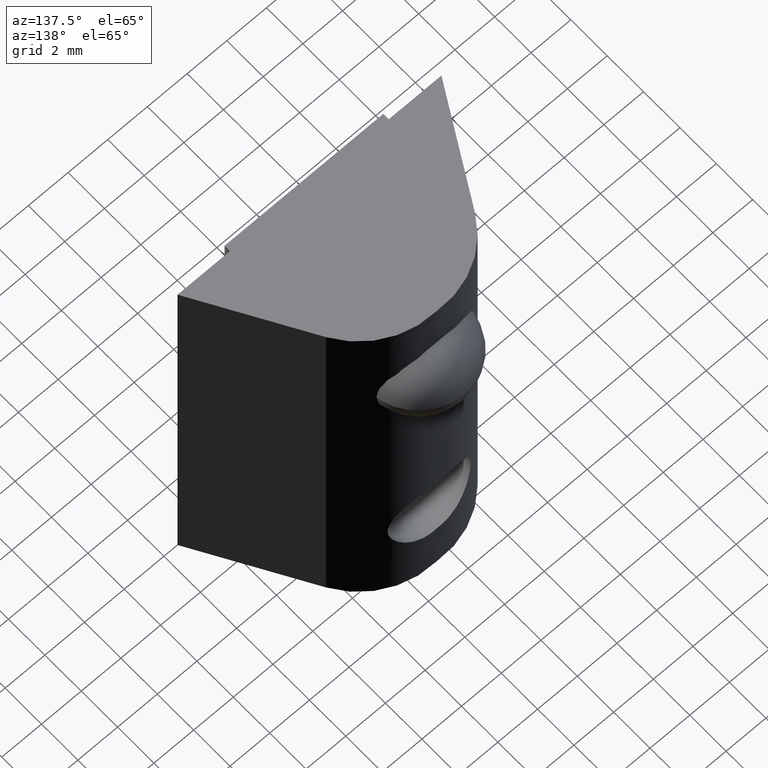
[diagram: clean part render]
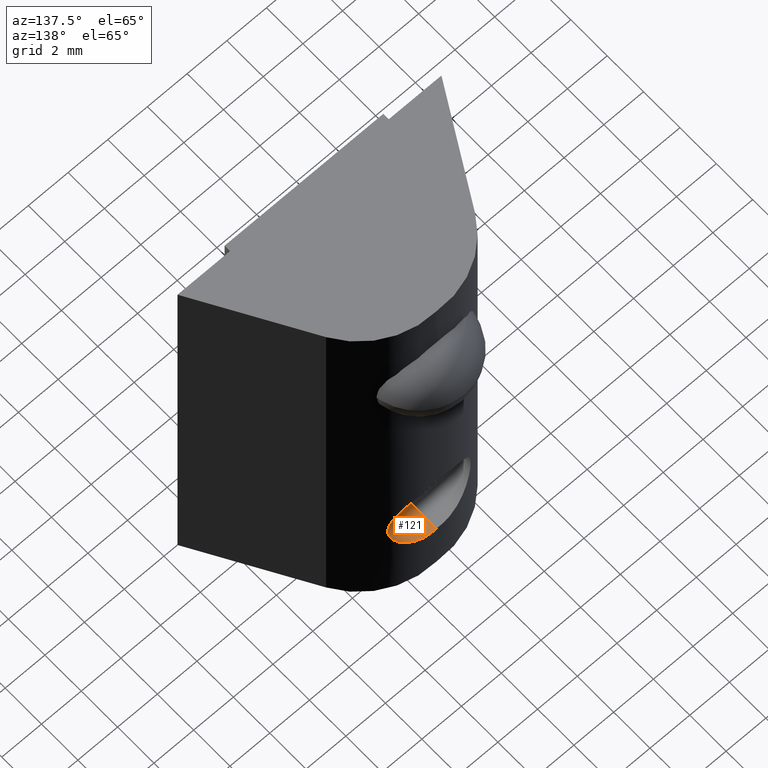
[diagram: same view with one face highlighted and labeled with its STEP entity id]
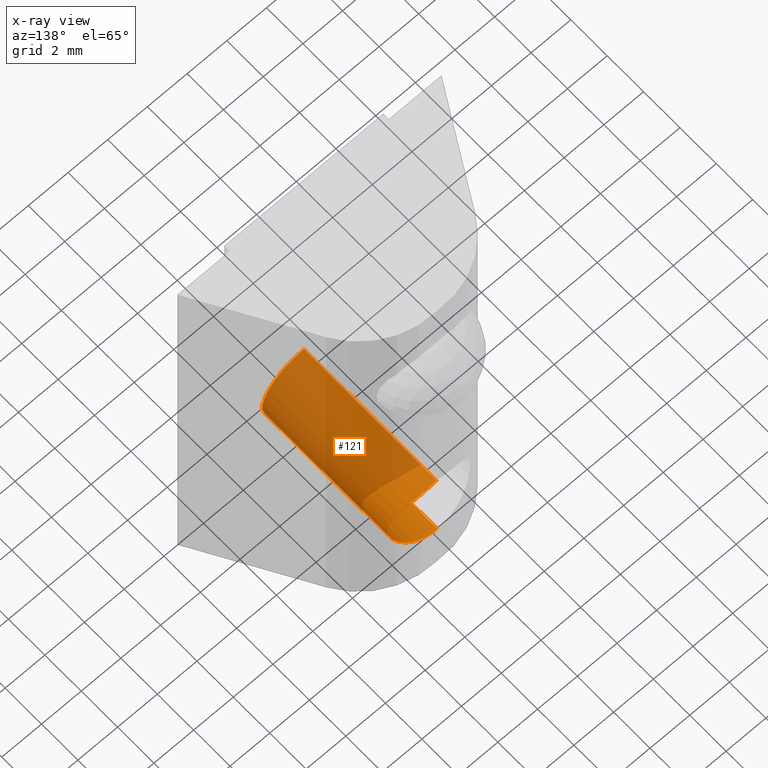
[diagram: x-ray of the same camera — body ghosted, the highlighted face saturated]
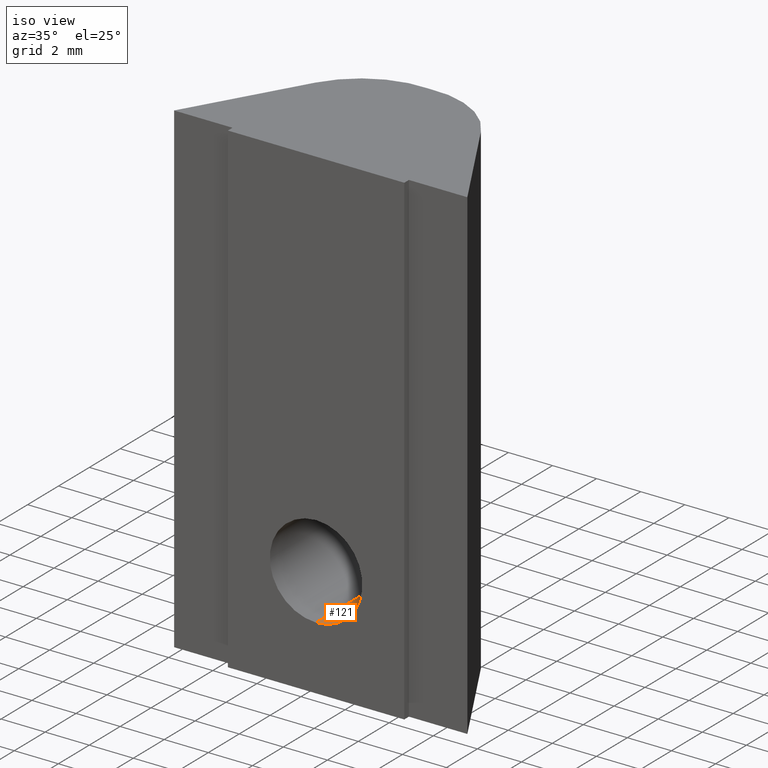
[diagram: same view with one face highlighted and labeled with its STEP entity id]
A machine part, auxiliary view. The second image highlights one B-rep face of the part: STEP entity #121.
The next image is the same camera in x-ray: the body ghosted, the highlighted face saturated — about 77% of this face is hidden behind the body in this view.
A second angle (iso view) of the same face is appended — the face is thin or edge-on in the first view.
In plain terms, the highlighted cylindrical surface (partial cylindrical patch) has radius 2.1 mm, axis along (0, 1, 0).
Its self-contained STEP definition (entity closure, byte-faithful):
#10 = EDGE_LOOP ( 'NONE', ( #658, #544, #724, #570 ) ) ;
#22 = CARTESIAN_POINT ( 'NONE',  ( 0.0000000000000000000, -0.2999999999999999300, -16.99999999999999600 ) ) ;
#26 = CARTESIAN_POINT ( 'NONE',  ( 0.2778427095453829300, 7.013015978677898900, -14.91386525814885100 ) ) ;
#31 = CARTESIAN_POINT ( 'NONE',  ( 1.065483002489959100, 6.943797238216981200, -15.16950234633369700 ) ) ;
#42 = AXIS2_PLACEMENT_3D ( 'NONE', #22, #204, #224 ) ;
#57 = EDGE_CURVE ( 'NONE', #597, #146, #70, .T. ) ;
#70 = LINE ( 'NONE', #618, #167 ) ;
#121 = ADVANCED_FACE ( 'NONE', ( #719 ), #378, .F. ) ;
#138 = CARTESIAN_POINT ( 'NONE',  ( 0.5492240288136818200, 7.004830928030088400, -14.96837313992467100 ) ) ;
#144 = CARTESIAN_POINT ( 'NONE',  ( 1.670093248805526200, 6.767075733069882300, -15.71965499976650400 ) ) ;
#146 = VERTEX_POINT ( 'NONE', #744 ) ;
#152 = CARTESIAN_POINT ( 'NONE',  ( 2.085941216390682800, 6.586504634481535400, -16.72104059423844900 ) ) ;
#155 = CARTESIAN_POINT ( 'NONE',  ( 0.0000000000000000000, 7.000000000000000000, -14.89999999999999900 ) ) ;
#163 = EDGE_CURVE ( 'NONE', #490, #678, #509, .T. ) ;
#167 = VECTOR ( 'NONE', #248, 1000.000000000000000 ) ;
#184 = CARTESIAN_POINT ( 'NONE',  ( -2.168404344971008900E-016, 7.000000000000000000, -19.09999999999999400 ) ) ;
#194 = VECTOR ( 'NONE', #735, 1000.000000000000000 ) ;
#203 = CARTESIAN_POINT ( 'NONE',  ( 2.571758278209441500E-016, -0.2999999999999999300, -19.09999999999999400 ) ) ;
#204 = DIRECTION ( 'NONE',  ( -0.0000000000000000000, 1.000000000000000000, -0.0000000000000000000 ) ) ;
#206 = CARTESIAN_POINT ( 'NONE',  ( 0.6841240291442684000, 6.993631784759942100, -15.00978186247948700 ) ) ;
#213 = CARTESIAN_POINT ( 'NONE',  ( -2.168404344971008900E-016, 7.000000000000000000, -19.09999999999999400 ) ) ;
#214 = CARTESIAN_POINT ( 'NONE',  ( 1.821280718181895700, 6.708142508589593200, -15.94575556681216500 ) ) ;
#224 = DIRECTION ( 'NONE',  ( 0.0000000000000000000, 0.0000000000000000000, 1.000000000000000000 ) ) ;
#225 = CARTESIAN_POINT ( 'NONE',  ( 1.670459469328647400, 6.766941291681750800, -18.27987192857328900 ) ) ;
#248 = DIRECTION ( 'NONE',  ( -0.0000000000000000000, 1.000000000000000000, -0.0000000000000000000 ) ) ;
#250 = CARTESIAN_POINT ( 'NONE',  ( 0.1401207566892639100, 7.010289564343477900, -19.09999999999999400 ) ) ;
#256 = CARTESIAN_POINT ( 'NONE',  ( 0.6862748488494189200, 6.993394619347876400, -18.98942124772582200 ) ) ;
#271 = CARTESIAN_POINT ( 'NONE',  ( 1.296584994652632700, 6.887950795788006200, -15.32606086254450700 ) ) ;
#337 = CARTESIAN_POINT ( 'NONE',  ( 1.297061383087251900, 6.887819709980458800, -18.67354579114834600 ) ) ;
#346 = CARTESIAN_POINT ( 'NONE',  ( 2.044340105706192700, 6.608803008618787400, -17.55335733217450000 ) ) ;
#367 = B_SPLINE_CURVE_WITH_KNOTS ( 'NONE', 3,
 ( #155, #609, #26, #138, #206, #31, #271, #525, #144, #214, #588, #783, #730, #152, #528, #661, #346, #722, #415, #225, #721, #337, #779, #256, #592, #501, #250, #184 ),
 .UNSPECIFIED., .F., .F.,
 ( 4, 2, 2, 2, 2, 2, 2, 2, 2, 2, 2, 2, 2, 4 ),
 ( 2.117074005974005400E-019, 0.0004148728083314227900, 0.0008297456166628452500, 0.001659491233325687900, 0.002074364041657113100, 0.002489236849988537600, 0.002904109658319962500, 0.003318982466651387500, 0.004148728083314227900, 0.004563600891645647200, 0.004978473699977068200, 0.005808219316639900800, 0.006223092124971314900, 0.006637964933302729000 ),
 .UNSPECIFIED. ) ;
#378 = CYLINDRICAL_SURFACE ( 'NONE', #639, 2.099999999999999600 ) ;
#415 = CARTESIAN_POINT ( 'NONE',  ( 1.821627727605634300, 6.707998891988374600, -18.05365051807418200 ) ) ;
#490 = VERTEX_POINT ( 'NONE', #203 ) ;
#497 = CARTESIAN_POINT ( 'NONE',  ( 0.0000000000000000000, -0.2999999999999999300, -14.90000000000000000 ) ) ;
#501 = CARTESIAN_POINT ( 'NONE',  ( 0.2786961704262097600, 7.013065025561826500, -19.08611431995495500 ) ) ;
#509 = LINE ( 'NONE', #553, #194 ) ;
#525 = CARTESIAN_POINT ( 'NONE',  ( 1.583050752569966900, 6.798305301411264900, -15.61354713897169900 ) ) ;
#528 = CARTESIAN_POINT ( 'NONE',  ( 2.099827479962585600, 6.579379551697452500, -16.85814070291563400 ) ) ;
#530 = EDGE_CURVE ( 'NONE', #146, #678, #367, .T. ) ;
#544 = ORIENTED_EDGE ( 'NONE', *, *, #769, .F. ) ;
#553 = CARTESIAN_POINT ( 'NONE',  ( 2.571758278209440500E-016, 7.099999999999999600, -19.09999999999999400 ) ) ;
#570 = ORIENTED_EDGE ( 'NONE', *, *, #530, .T. ) ;
#575 = CARTESIAN_POINT ( 'NONE',  ( 0.0000000000000000000, 7.099999999999999600, -16.99999999999999600 ) ) ;
#588 = CARTESIAN_POINT ( 'NONE',  ( 1.885337724352163800, 6.680566253026357000, -16.06505299109328900 ) ) ;
#592 = CARTESIAN_POINT ( 'NONE',  ( 0.5527658157034883700, 7.004648108339561800, -19.03076204029941100 ) ) ;
#597 = VERTEX_POINT ( 'NONE', #497 ) ;
#609 = CARTESIAN_POINT ( 'NONE',  ( 0.1400245413287797600, 7.010282498908164700, -14.90000000000000200 ) ) ;
#618 = CARTESIAN_POINT ( 'NONE',  ( 0.0000000000000000000, 7.099999999999999600, -14.89999999999999900 ) ) ;
#623 = DIRECTION ( 'NONE',  ( -0.0000000000000000000, 1.000000000000000000, -0.0000000000000000000 ) ) ;
#628 = DIRECTION ( 'NONE',  ( 0.0000000000000000000, 0.0000000000000000000, 1.000000000000000000 ) ) ;
#639 = AXIS2_PLACEMENT_3D ( 'NONE', #575, #623, #628 ) ;
#658 = ORIENTED_EDGE ( 'NONE', *, *, #163, .F. ) ;
#661 = CARTESIAN_POINT ( 'NONE',  ( 2.100340295472199200, 6.579119870751841700, -17.27598671402250800 ) ) ;
#678 = VERTEX_POINT ( 'NONE', #213 ) ;
#719 = FACE_OUTER_BOUND ( 'NONE', #10, .T. ) ;
#721 = CARTESIAN_POINT ( 'NONE',  ( 1.583304727029544200, 6.798216803715933800, -18.38615550282337100 ) ) ;
#722 = CARTESIAN_POINT ( 'NONE',  ( 1.885905534317129600, 6.680324009748408000, -17.93393951455623600 ) ) ;
#724 = ORIENTED_EDGE ( 'NONE', *, *, #57, .T. ) ;
#725 = CIRCLE ( 'NONE', #42, 2.099999999999997900 ) ;
#730 = CARTESIAN_POINT ( 'NONE',  ( 2.031638843905418500, 6.613221354478866900, -16.45098932958007900 ) ) ;
#735 = DIRECTION ( 'NONE',  ( -0.0000000000000000000, 1.000000000000000000, -0.0000000000000000000 ) ) ;
#744 = CARTESIAN_POINT ( 'NONE',  ( 0.0000000000000000000, 7.000000000000000000, -14.89999999999999900 ) ) ;
#769 = EDGE_CURVE ( 'NONE', #597, #490, #725, .T. ) ;
#779 = CARTESIAN_POINT ( 'NONE',  ( 1.065268130170006200, 6.943736811957328400, -18.83037812681127600 ) ) ;
#783 = CARTESIAN_POINT ( 'NONE',  ( 1.990486400177827500, 6.633127672300300800, -16.31692743062240700 ) ) ;